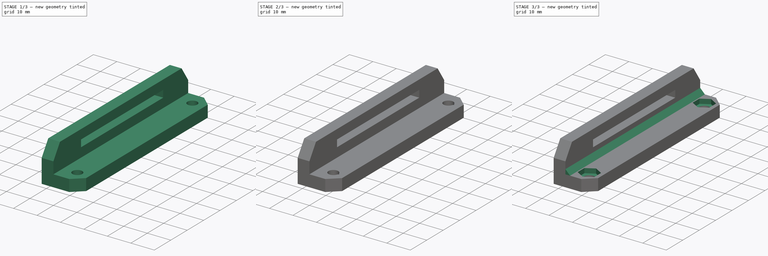
[diagram: build sequence overview — one tinted view per stage of 3, left to right]
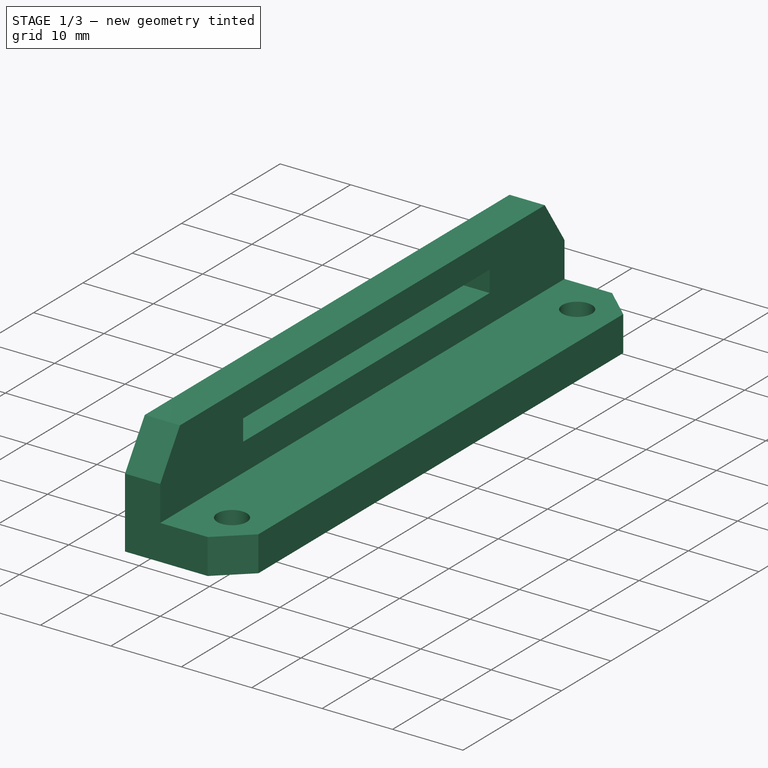
[diagram: stage 1 of 3 — iso view after this stage's code; geometry added in this stage tinted green]
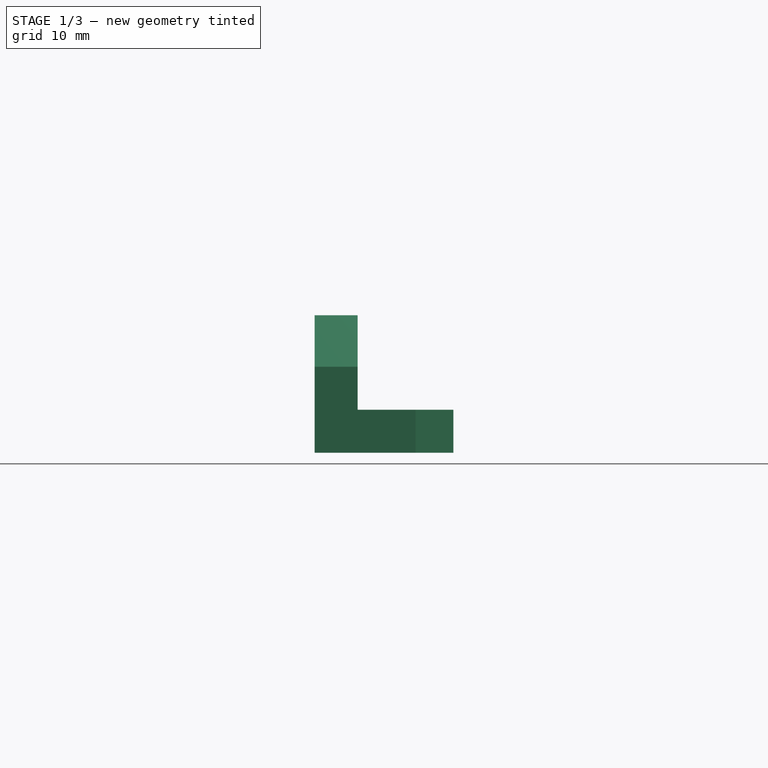
[diagram: stage 1 of 3 — front view after this stage's code; geometry added in this stage tinted green]
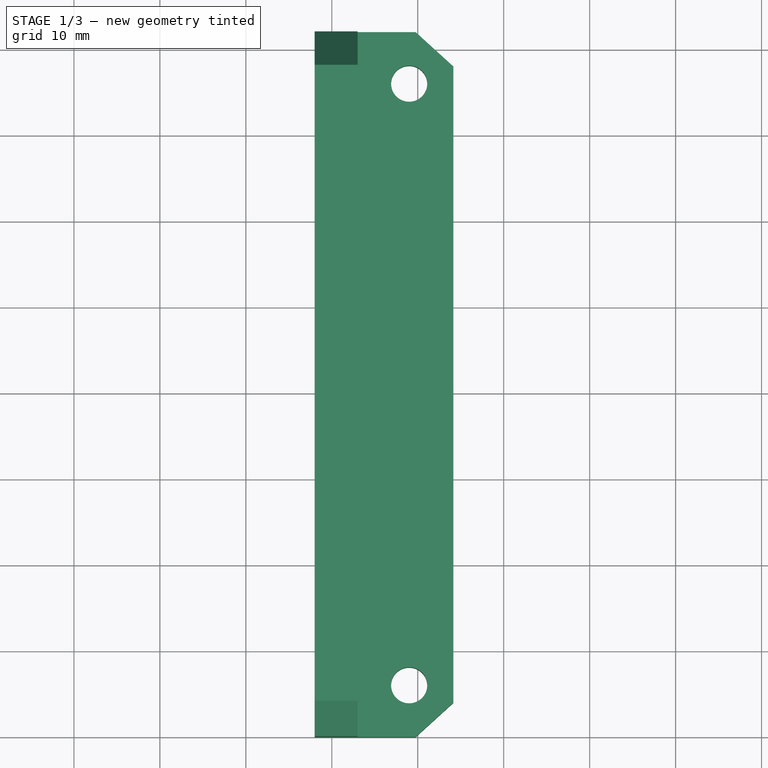
[diagram: stage 1 of 3 — top view after this stage's code; geometry added in this stage tinted green]
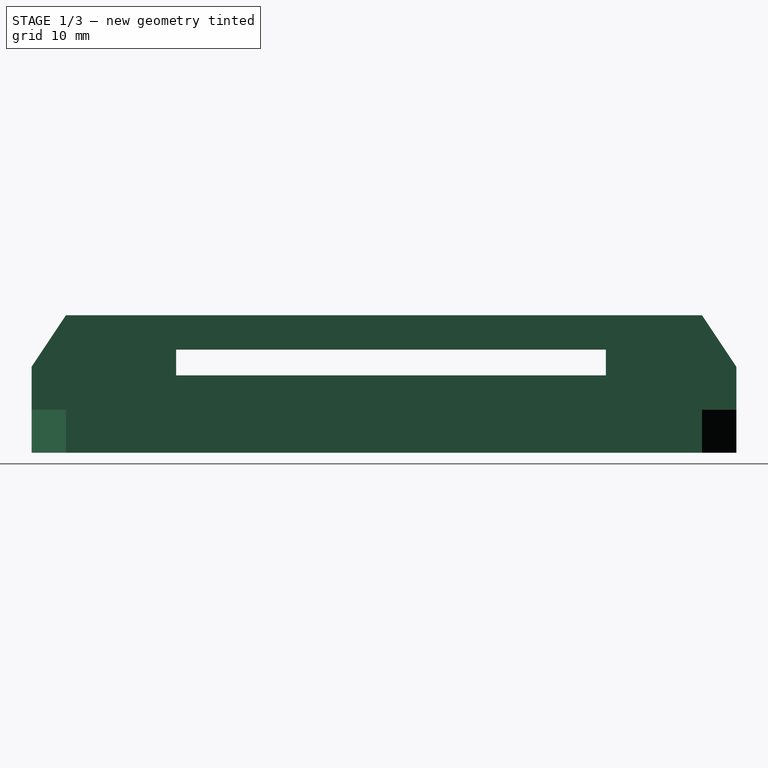
[diagram: stage 1 of 3 — right view after this stage's code; geometry added in this stage tinted green]
FCSTD DOCUMENT  (FreeCAD 0.15R4671 (Git))
Label: Enclosure_supports_04
License: All rights reserved
LicenseURL: http://en.wikipedia.org/wiki/All_rights_reserved
objects: Sketcher::SketchObject×5, PartDesign::Pad×3, PartDesign::Pocket×2, Part::MultiFuse×1
note: 16 computed .brp shape members not serialized (recipe doc carries the construction recipe); baked Part::Feature solids carry a one-line shape summary decoded from their .brp

FEATURE [Sketcher::SketchObject] Sketch
  sketch-geometry (8):
    g0: LineSegment StartX=0 StartY=82 StartZ=0 EndX=0 EndY=0 EndZ=0
    g1: LineSegment StartX=14.1465 StartY=4 StartZ=0 EndX=14.1465 EndY=78 EndZ=0
    g2: Circle CenterX=9 CenterY=6 CenterZ=0 NormalX=0 NormalY=0 NormalZ=1 Radius=2.1
    g3: Circle CenterX=9 CenterY=76 CenterZ=0 NormalX=0 NormalY=0 NormalZ=1 Radius=2.1
    g4: LineSegment StartX=0 StartY=0 StartZ=0 EndX=9.75043 EndY=0 EndZ=0
    g5: LineSegment StartX=9.75043 StartY=0 StartZ=0 EndX=14.1465 EndY=4 EndZ=0
    g6: LineSegment StartX=0 StartY=82 StartZ=0 EndX=9.75043 EndY=82 EndZ=0
    g7: LineSegment StartX=9.75043 StartY=82 StartZ=0 EndX=14.1465 EndY=78 EndZ=0
  constraints (22):
    c: PointOnObject(g0,g-2)
    c: Vertical(g0)
    c: Vertical(g1)
    c: Radius(g2) = 2.1
    c: Equal(g2,g3)
    c: Distance(g1) = 74
    c: Distance(g0) = 82
    c: Coincident(g-1,g0)
    c: Distance(g3,g2) = 70
    c: Horizontal(g4)
    c: Coincident(g4,g5)
    c: Coincident(g5,g1)
    c: Coincident(g4,g-1)
    c: Coincident(g0,g6)
    c: Horizontal(g6)
    c: Coincident(g6,g7)
    c: Coincident(g7,g1)
    c: Equal(g6,g4)
    c: Equal(g7,g5)
    c: Distance(g3,g0) = 9
    c: Distance(g2,g0) = 9
    c: Distance(g3,g6) = 6
FEATURE [PartDesign::Pad] Pad
  Length = 5
  Length2 = 100
  Sketch = -> Sketch
  Type = 0
FEATURE [Sketcher::SketchObject] Sketch001
  Placement = pos=(-2,0,0) rot=(0.57735,0.57735,0.57735;2.0944rad)
  sketch-geometry (10):
    g0: LineSegment StartX=0 StartY=0 StartZ=0 EndX=82 EndY=0 EndZ=0
    g1: LineSegment StartX=82 StartY=0 StartZ=0 EndX=82 EndY=10 EndZ=0
    g2: LineSegment StartX=82 StartY=10 StartZ=0 EndX=78 EndY=16 EndZ=0
    g3: LineSegment StartX=78 StartY=16 StartZ=0 EndX=4 EndY=16 EndZ=0
    g4: LineSegment StartX=4 StartY=16 StartZ=0 EndX=0 EndY=10 EndZ=0
    g5: LineSegment StartX=0 StartY=10 StartZ=0 EndX=0 EndY=0 EndZ=0
    g6: LineSegment StartX=16.8134 StartY=9 StartZ=0 EndX=66.8134 EndY=9 EndZ=0
    g7: LineSegment StartX=66.8134 StartY=9 StartZ=0 EndX=66.8134 EndY=12 EndZ=0
    g8: LineSegment StartX=66.8134 StartY=12 StartZ=0 EndX=16.8134 EndY=12 EndZ=0
    g9: LineSegment StartX=16.8134 StartY=12 StartZ=0 EndX=16.8134 EndY=9 EndZ=0
  constraints (28):
    c: Coincident(g0,g1)
    c: Vertical(g1)
    c: Coincident(g1,g2)
    c: Coincident(g2,g3)
    c: Horizontal(g3)
    c: Coincident(g3,g4)
    c: Coincident(g4,g5)
    c: Coincident(g5,g0)
    c: Parallel(g5,g1)
    c: Equal(g5,g1)
    c: Equal(g4,g2)
    c: Coincident(g6,g7)
    c: Coincident(g7,g8)
    c: Coincident(g8,g9)
    c: Coincident(g9,g6)
    c: Horizontal(g8)
    c: Vertical(g7)
    c: Vertical(g9)
    c: Parallel(g8,g0)
    c: Parallel(g0,g6)
    c: Coincident(g-1,g0)
    c: Distance(g0) = 82
    c: Distance(g3) = 74
    c: Distance(g1) = 10
    c: DistanceX(g8,g8) = 50
    c: DistanceY(g9,g9) = 3
    c: DistanceY(g-1,g3) = 16
    c: DistanceY(g-1,g8) = 12
FEATURE [PartDesign::Pad] Pad001
  Length = 5
  Length2 = 100
  Placement = pos=(-2,0,0) rot=(0.57735,0.57735,0.57735;2.0944rad)
  Sketch = -> Sketch001
  Type = 0
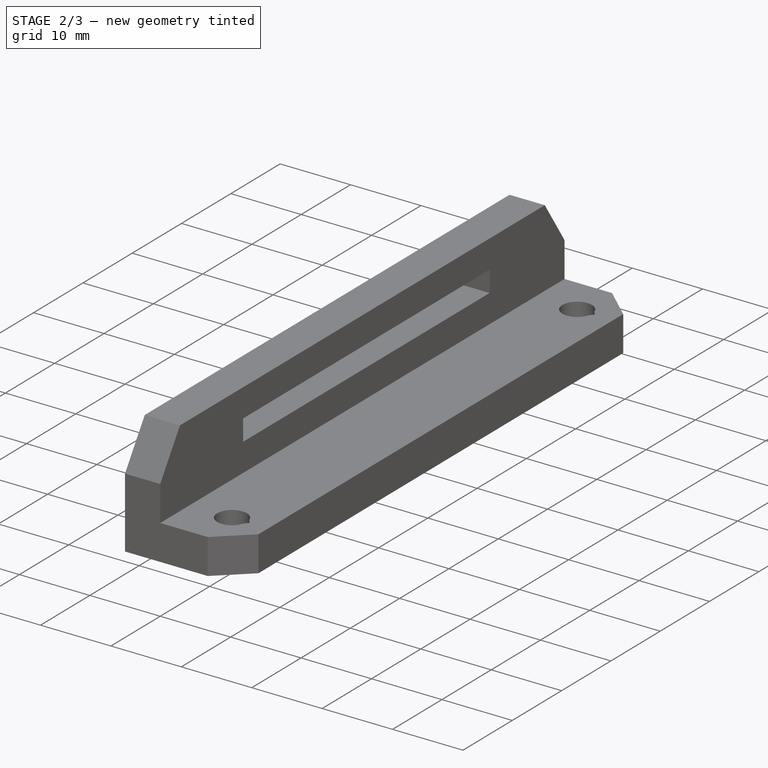
[diagram: stage 2 of 3 — iso view after this stage's code; geometry added in this stage tinted green]
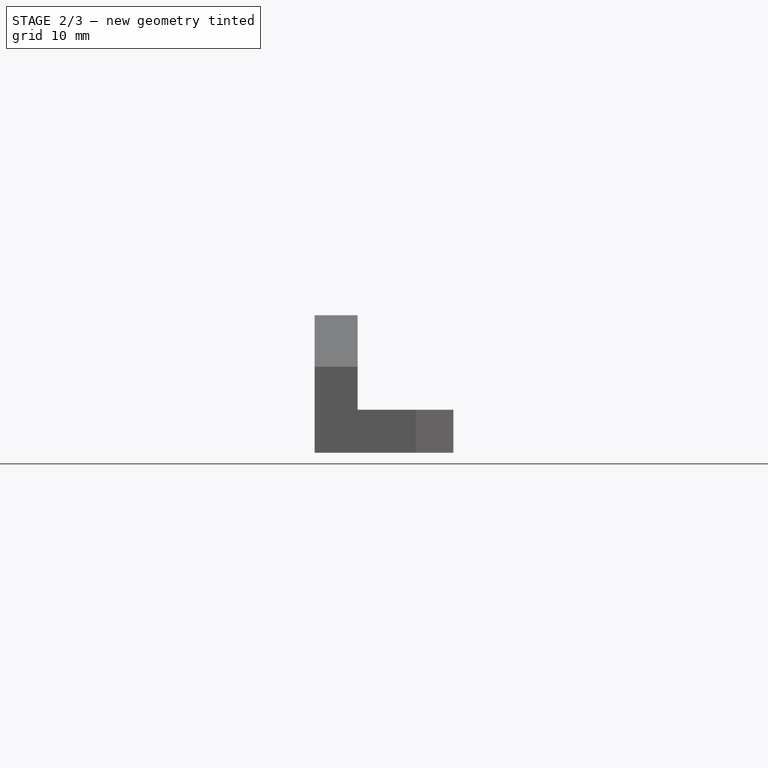
[diagram: stage 2 of 3 — front view after this stage's code; geometry added in this stage tinted green]
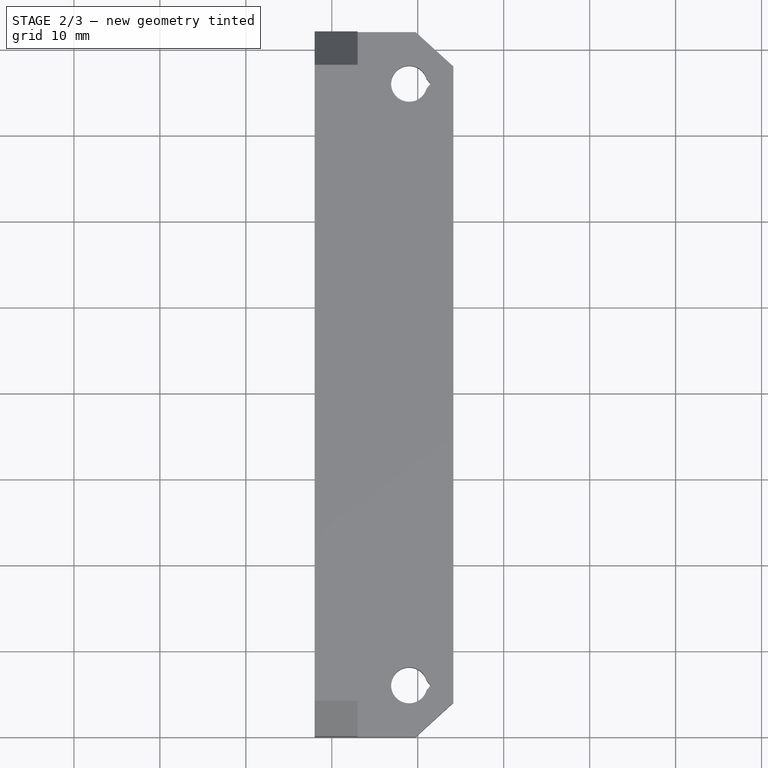
[diagram: stage 2 of 3 — top view after this stage's code; geometry added in this stage tinted green]
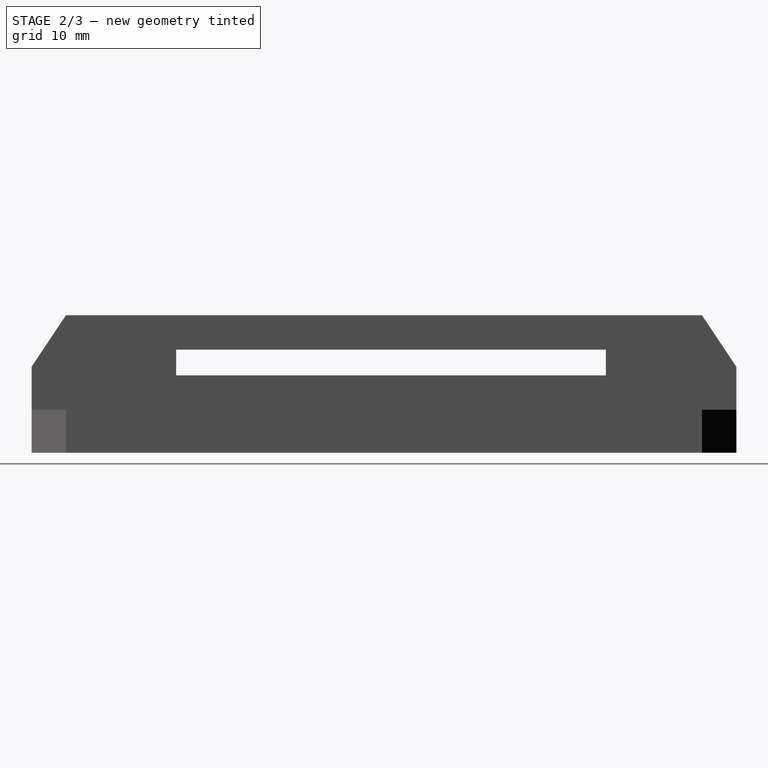
[diagram: stage 2 of 3 — right view after this stage's code; geometry added in this stage tinted green]
FEATURE [Part::MultiFuse] Fusion
  Shapes = -> [Pad,Pad001]
FEATURE [Sketcher::SketchObject] Sketch003
  Placement = pos=(0,0,0) rot=(1,0,0;3.14159rad)
  Support = -> Fusion [Face4]
  sketch-geometry (6):
    g0: LineSegment StartX=10.1036 StartY=-4.3 StartZ=0 EndX=11.5 EndY=-6 EndZ=0
    g1: LineSegment StartX=11.5 StartY=-6 StartZ=0 EndX=10.1036 EndY=-7.7 EndZ=0
    g2: LineSegment StartX=10.1036 StartY=-7.7 StartZ=0 EndX=10.1036 EndY=-4.3 EndZ=0
    g3: LineSegment StartX=10.1036 StartY=-74.3 StartZ=0 EndX=10.1036 EndY=-77.7 EndZ=0
    g4: LineSegment StartX=10.1036 StartY=-77.7 StartZ=0 EndX=11.5 EndY=-76 EndZ=0
    g5: LineSegment StartX=11.5 StartY=-76 StartZ=0 EndX=10.1036 EndY=-74.3 EndZ=0
  constraints (18):
    c: Coincident(g0,g1)
    c: Coincident(g1,g2)
    c: Coincident(g2,g0)
    c: Vertical(g2)
    c: DistanceY(g-1,g0) = -6
    c: DistanceX(g-1,g0) = 11.5
    c: Equal(g0,g1)
    c: Distance(g0) = 2.2
    c: Distance(g2) = 3.4
    c: Coincident(g3,g4)
    c: Coincident(g4,g5)
    c: Coincident(g5,g3)
    c: DistanceY(g-1,g4) = -76
    c: Equal(g4,g5)
    c: Distance(g5) = 2.2
    c: Distance(g3) = 3.4
    c: DistanceX(g-1,g4) = 11.5
    c: Parallel(g3,g-2)
FEATURE [PartDesign::Pocket] Pocket
  Length = 6
  Sketch = -> Sketch003
  Type = 0
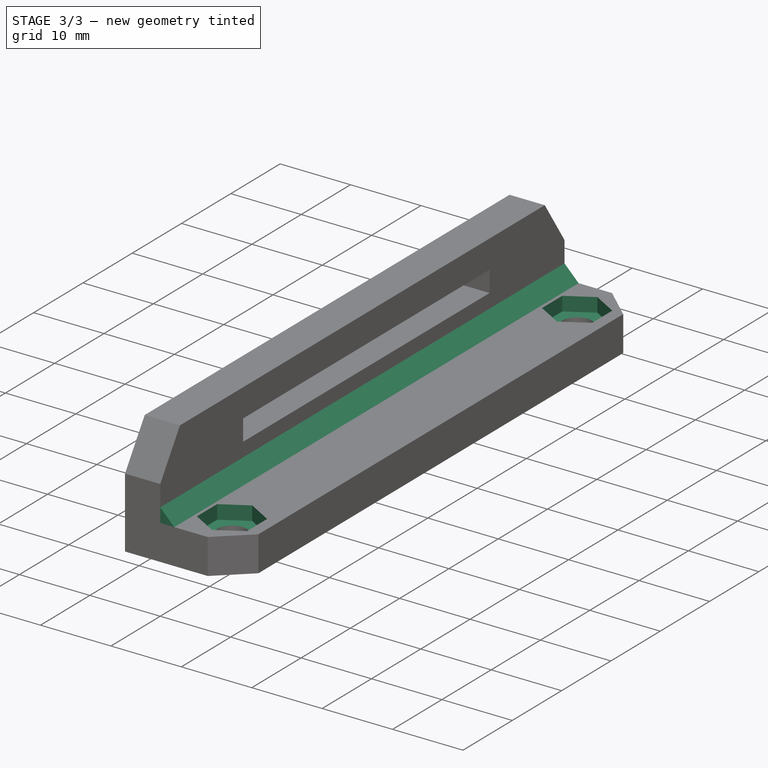
[diagram: stage 3 of 3 — iso view after this stage's code; geometry added in this stage tinted green]
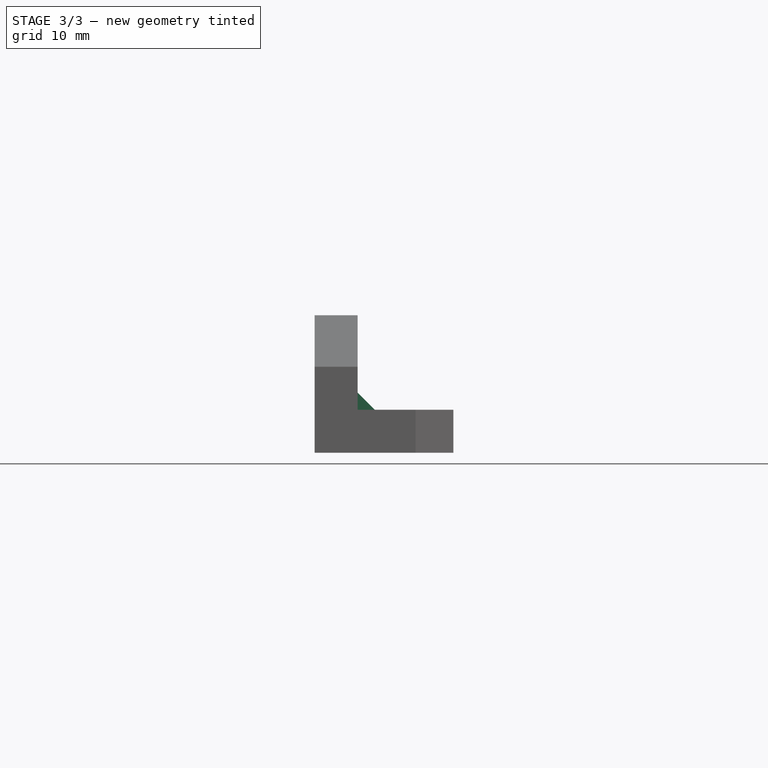
[diagram: stage 3 of 3 — front view after this stage's code; geometry added in this stage tinted green]
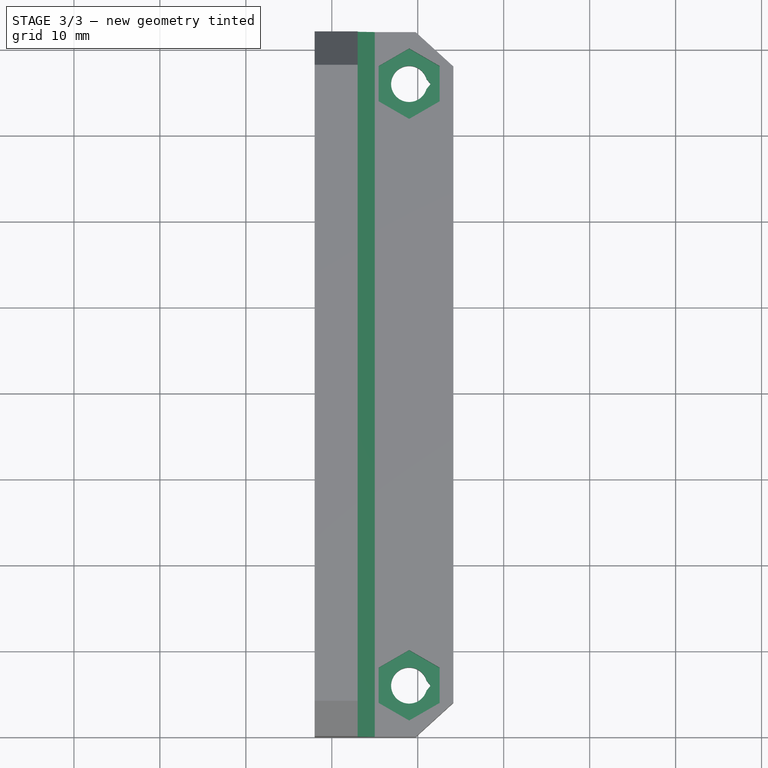
[diagram: stage 3 of 3 — top view after this stage's code; geometry added in this stage tinted green]
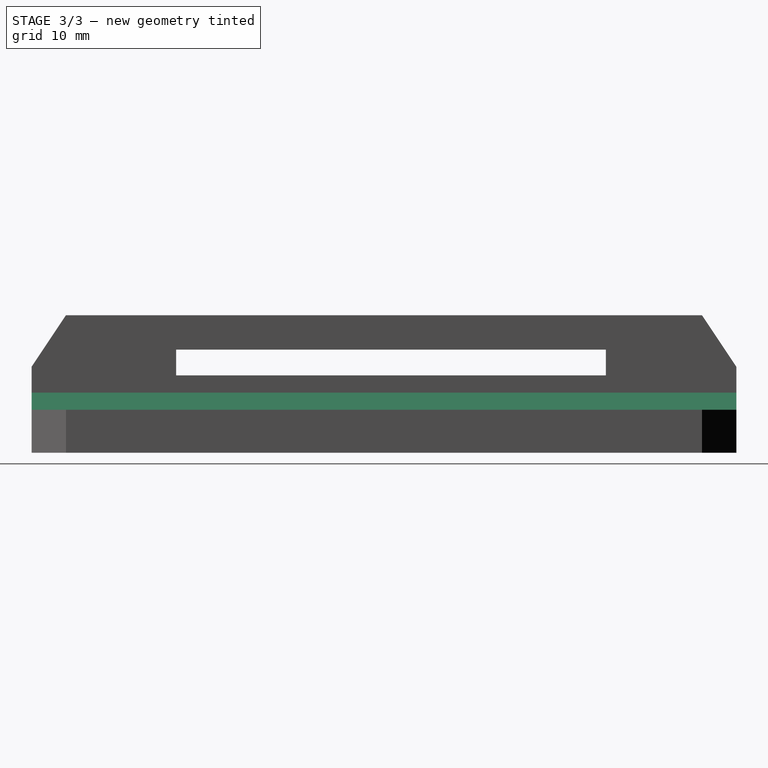
[diagram: stage 3 of 3 — right view after this stage's code; geometry added in this stage tinted green]
FEATURE [Sketcher::SketchObject] Sketch002
  Placement = pos=(3,0,5) rot=(1,0,0;1.5708rad)
  sketch-geometry (3):
    g0: LineSegment StartX=0 StartY=0 StartZ=0 EndX=0 EndY=2 EndZ=0
    g1: LineSegment StartX=0 StartY=2 StartZ=0 EndX=2 EndY=0 EndZ=0
    g2: LineSegment StartX=2 StartY=0 StartZ=0 EndX=0 EndY=0 EndZ=0
  constraints (8):
    c: Coincident(g-1,g0)
    c: Coincident(g0,g1)
    c: Coincident(g1,g2)
    c: Coincident(g2,g0)
    c: Equal(g0,g2)
    c: Distance(g0) = 2
    c: Perpendicular(g2,g0)
    c: DistanceX(g-1,g0) = 0
FEATURE [PartDesign::Pad] Pad002
  Length = 82
  Length2 = 100
  Placement = pos=(3,0,5) rot=(1,0,0;1.5708rad)
  Reversed = true
  Sketch = -> Sketch002
  Type = 0
FEATURE [Sketcher::SketchObject] Sketch004
  Placement = pos=(0,0,5) rot=(0,0,1;0rad)
  Support = -> Pocket [Face5]
  sketch-geometry (14):
    g0: LineSegment StartX=9 StartY=71.9 StartZ=0 EndX=12.5507 EndY=73.95 EndZ=0
    g1: LineSegment StartX=12.5507 StartY=73.95 StartZ=0 EndX=12.5507 EndY=78.05 EndZ=0
    g2: LineSegment StartX=12.5507 StartY=78.05 StartZ=0 EndX=9 EndY=80.1 EndZ=0
    g3: LineSegment StartX=9 StartY=80.1 StartZ=0 EndX=5.4493 EndY=78.05 EndZ=0
    g4: LineSegment StartX=5.4493 StartY=78.05 StartZ=0 EndX=5.4493 EndY=73.95 EndZ=0
    g5: LineSegment StartX=5.4493 StartY=73.95 StartZ=0 EndX=9 EndY=71.9 EndZ=0
    g6: Circle [constr] CenterX=9 CenterY=76 CenterZ=0 NormalX=0 NormalY=0 NormalZ=1 Radius=4.1
    g7: LineSegment StartX=9 StartY=10.1 StartZ=0 EndX=5.4493 EndY=8.05 EndZ=0
    g8: LineSegment StartX=5.4493 StartY=8.05 StartZ=0 EndX=5.4493 EndY=3.95 EndZ=0
    g9: LineSegment StartX=5.4493 StartY=3.95 StartZ=0 EndX=9 EndY=1.9 EndZ=0
    g10: LineSegment StartX=9 StartY=1.9 StartZ=0 EndX=12.5507 EndY=3.95 EndZ=0
    g11: LineSegment StartX=12.5507 StartY=3.95 StartZ=0 EndX=12.5507 EndY=8.05 EndZ=0
    g12: LineSegment StartX=12.5507 StartY=8.05 StartZ=0 EndX=9 EndY=10.1 EndZ=0
    g13: Circle [constr] CenterX=9 CenterY=6 CenterZ=0 NormalX=0 NormalY=0 NormalZ=1 Radius=4.1
  constraints (34):
    c: Coincident(g0,g1)
    c: Coincident(g1,g2)
    c: Coincident(g2,g3)
    c: Coincident(g3,g4)
    c: Coincident(g4,g5)
    c: Coincident(g5,g0)
    c: Equal(g0, g1-g5) x5
    c: PointOnObject(g0,g6)
    c: PointOnObject(g1,g6)
    c: PointOnObject(g2,g6)
    c: PointOnObject(g3,g6)
    c: PointOnObject(g4,g6)
    c: PointOnObject(g5,g6)
    c: DistanceX(g-1,g6) = 9
    c: Radius(g6) = 4.1
    c: Coincident(g7,g8)
    c: Coincident(g8,g9)
    c: Coincident(g9,g10)
    c: Coincident(g10,g11)
    c: Coincident(g11,g12)
    c: Coincident(g12,g7)
    c: Equal(g7, g8-g12) x5
    c: PointOnObject(g7,g13)
    c: PointOnObject(g8,g13)
    c: PointOnObject(g9,g13)
    c: PointOnObject(g10,g13)
    c: PointOnObject(g11,g13)
    c: PointOnObject(g12,g13)
    c: Radius(g13) = 4.1
    c: DistanceX(g-1,g13) = 9
    c: DistanceY(g-1,g13) = 6
    c: DistanceY(g13,g6) = 70
    c: Parallel(g1,g-2)
    c: Parallel(g11,g-2)
FEATURE [PartDesign::Pocket] Pocket001
  Length = 2
  Sketch = -> Sketch004
  Type = 0
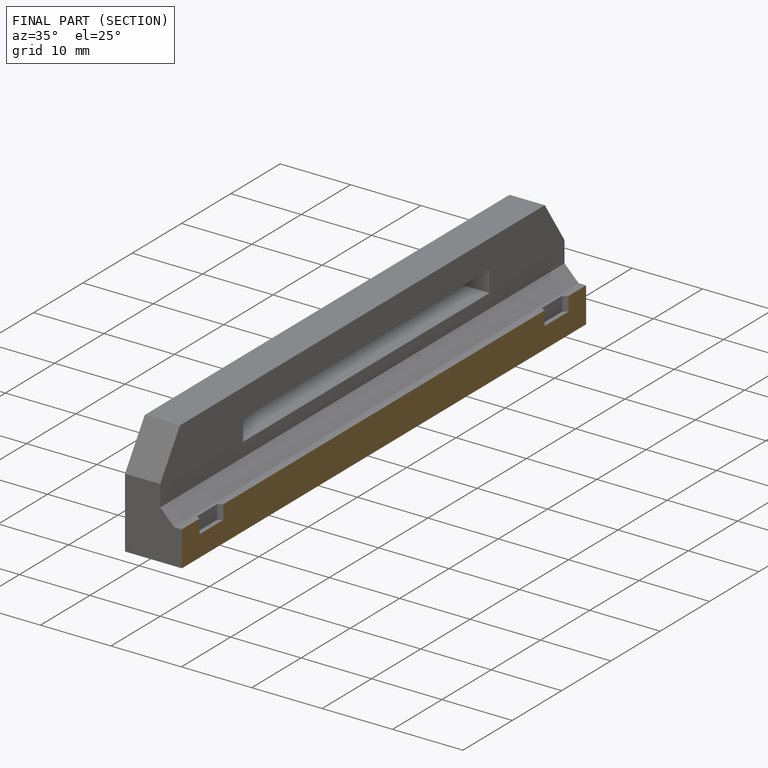
[diagram: finished part — half-section view (interior)]
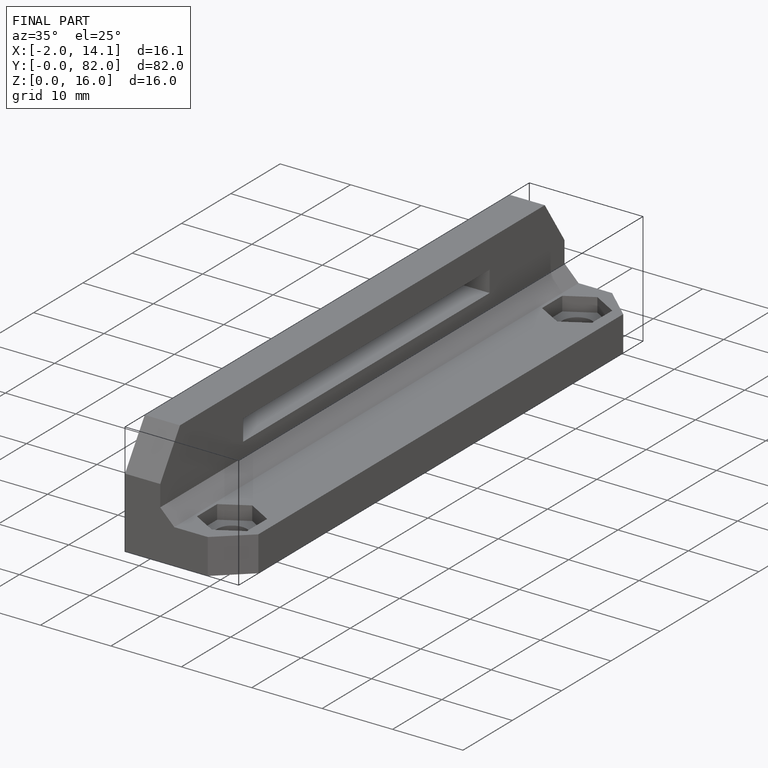
[diagram: finished part — iso view with bounding-box wireframe]
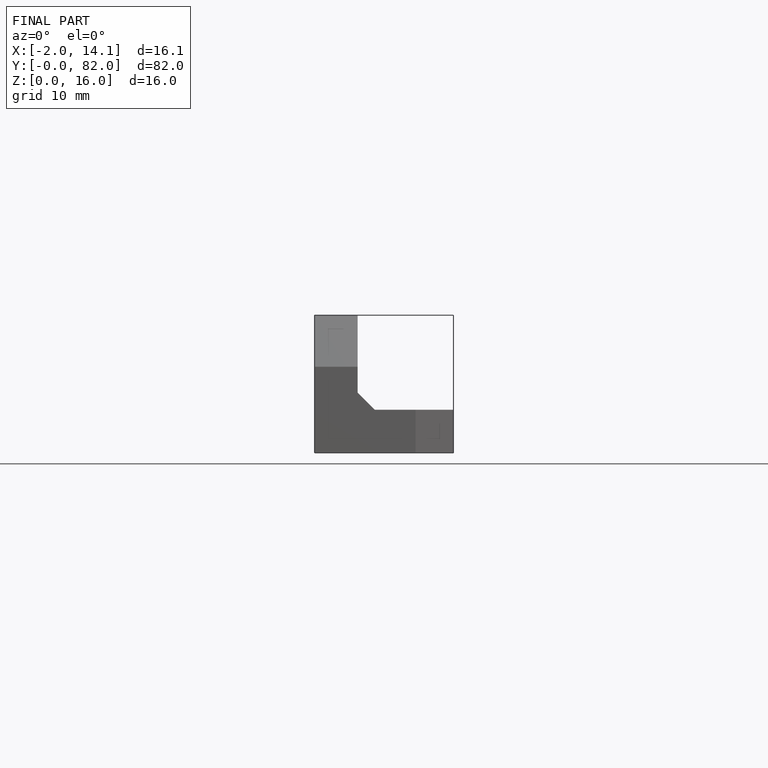
[diagram: finished part — front view with bounding-box wireframe]
